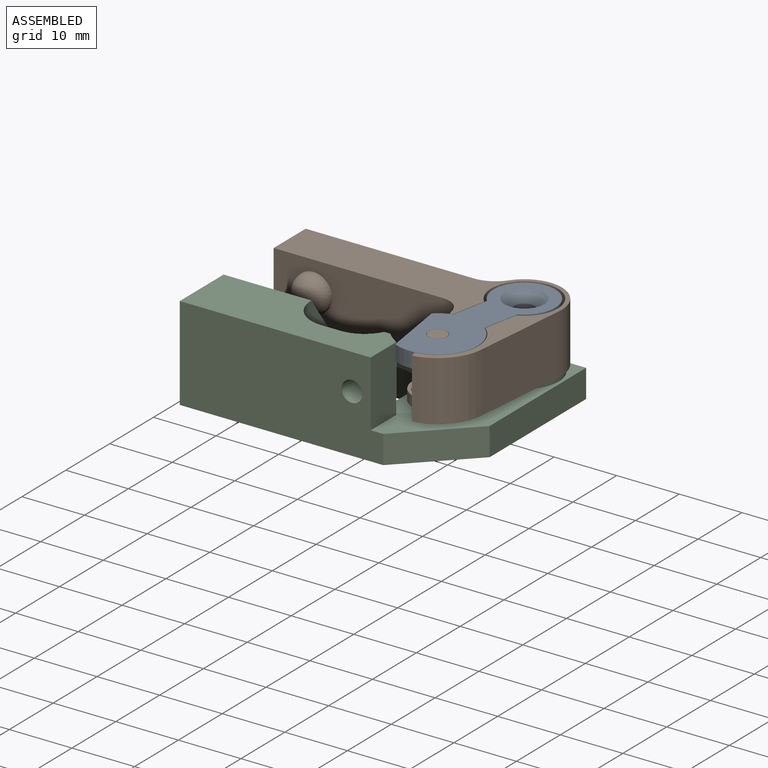
[diagram: assembled view]
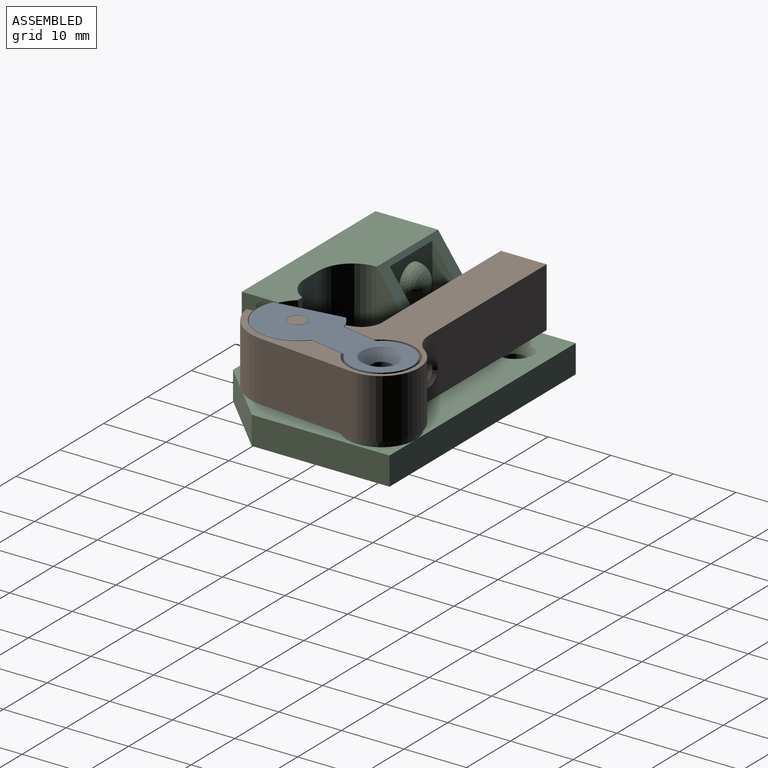
[diagram: assembled view, second angle]
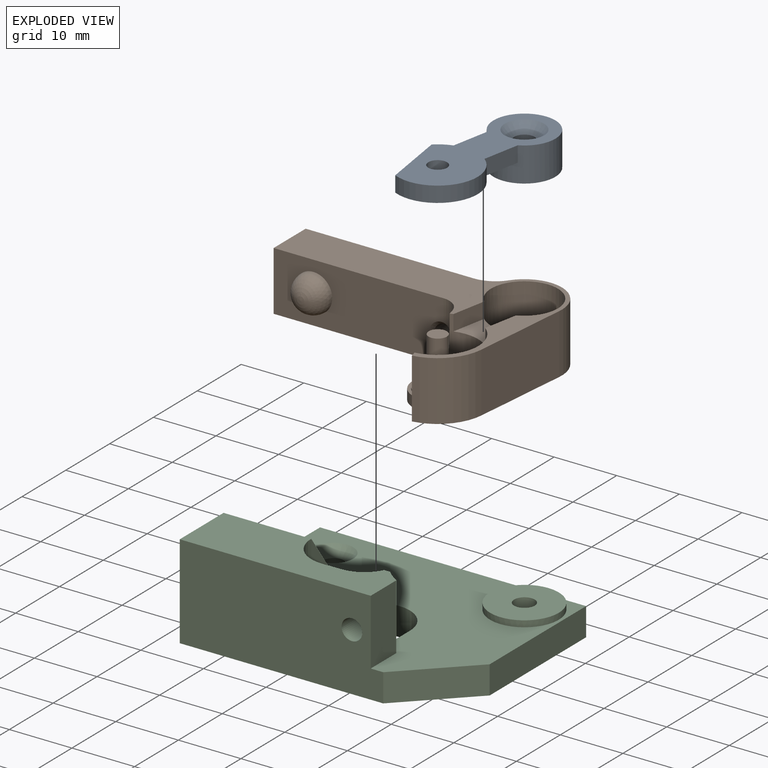
[diagram: exploded view]
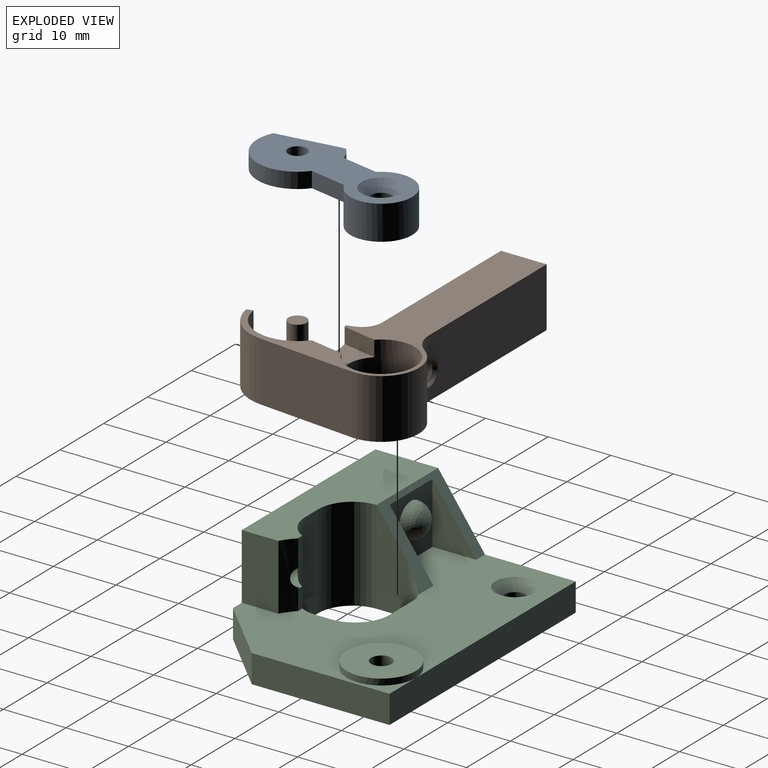
[diagram: exploded view, second angle]
ASSEMBLY  parts=3 mates=3
PART A: 14 faces, bbox 14.4x26.9x5.5 mm
  f0: cylinder r=4.95mm len=9.9mm, axis (0,0,-1), area 155.6mm2, adj f1,f7,f8,f9,f10
  f1: plane 5.96x2.5mm, normal (-0.98,0.19,0), area 15.2mm2, adj f0,f2,f8,f9
  f2: cylinder r=6.4mm len=12.55mm, axis (0,0,-1), area 46.7mm2, adj f1,f3,f8,f9
  f3: plane 9.19x5.38mm, normal (0.86,-0.51,0), area 26.6mm2, adj f2,f4,f8,f9
  f4: cylinder r=6.4mm len=2.5mm, axis (0,0,-1), area 7.3mm2, adj f3,f7,f8,f9
  f5: cylinder r=1.65mm len=4mm, axis (0,0,-1), area 41.5mm2, adj f10,f11
  f6: cylinder r=1.5mm len=3.2mm, axis (0,0,-1), area 30.2mm2, adj f9,f13
  f7: plane 5.96x2.5mm, normal (0.98,-0.19,0), area 15.2mm2, adj f0,f4,f8,f9
  f8: plane 18.51x12.16mm, normal (0,0,1), area 107.8mm2, adj f0,f1,f2,f3,f4,f7,f12
  f9: plane 26.85x14.35mm, normal (0,0,-1), area 174.9mm2, adj f0,f1,f2,f3,f4,f6,f7,f11
  f10: plane 9.9x9.9mm, normal (0,0,1), area 68.4mm2, adj f0,f5
  f11: cone r=3.15mm half-angle=45deg, axis (0,0,-1), area 32mm2, adj f5,f9
  f12: cylinder r=3mm len=6mm, axis (0,0,-1), area 13.2mm2, adj f8,f13
  f13: plane 6x6mm, normal (0,0,1), area 21.2mm2, adj f6,f12
PART B: 31 faces, bbox 41.9x28.9x9.5 mm
  f0: plane 41.86x28.92mm, normal (0,0,1), area 292.6mm2, adj f1,f2,f5,f6,f7,f8,f9,f10
  f1: cylinder r=6.5mm len=12.95mm, axis (0,0,1), area 157.1mm2, adj f0,f11,f12,f23,f28,f29,f30
  f2: cylinder r=5.35mm len=10.7mm, axis (0,0,1), area 169mm2, adj f0,f21,f28,f29,f30
  f3: cylinder r=4mm len=7.61mm, axis (0,0,-1), area 18.1mm2, adj f11,f12,f14,f23
  f4: cylinder r=1.65mm len=4mm, axis (0,0,-1), area 41.5mm2, adj f14,f21
  f5: plane 15.64x9.5mm, normal (1,-0.1,0), area 149.3mm2, adj f0,f6,f13,f14
  f6: cylinder r=6mm len=10.92mm, axis (0,0,-1), area 149.8mm2, adj f0,f5,f14,f16
  f7: plane 26.84x9.5mm, normal (0,1,0), area 248.8mm2, adj f0,f8,f14,f16,f20
  f8: plane 9.5x7.3mm, normal (-1,0,0), area 69.4mm2, adj f0,f7,f9,f14
  f9: plane 27.11x9.5mm, normal (0,-1,0), area 222mm2, adj f0,f8,f10,f14,f18,f22
  f10: cylinder r=3.26mm len=9.5mm, axis (0,0,-1), area 36.3mm2, adj f0,f9,f11,f14,f17
  f11: plane 9.5x3.43mm, normal (-0.97,-0.25,0), area 13.7mm2, adj f0,f1,f3,f10,f14,f23
  f12: plane 9.5x3.43mm, normal (-0.97,-0.25,0), area 13.7mm2, adj f0,f1,f3,f13,f14,f23
  f13: cylinder r=7.5mm len=9.5mm, axis (0,0,-1), area 94.9mm2, adj f0,f5,f12,f14
  f14: plane 41.86x28.92mm, normal (0,0,-1), area 496.2mm2, adj f3,f4,f5,f6,f7,f8,f9,f10
  f15: cylinder r=1.5mm len=7.12mm, axis (0,1,0), area 61.2mm2, adj f17,f18,f19,f20
  f16: cylinder r=5mm len=9.5mm, axis (0,0,-1), area 39.8mm2, adj f0,f6,f7,f14,f19
  f17: bspline ~3.97x1.58mm, area 3mm2, adj f10,f15,f18
  f18: cone r=2mm half-angle=45deg, axis (0,-1,0), area 4.2mm2, adj f9,f15,f17
  f19: bspline ~4.01x1.83mm, area 3.5mm2, adj f15,f16,f20
  f20: cone r=1.5mm half-angle=45deg, axis (0,1,0), area 3.9mm2, adj f7,f15,f19
  f21: plane 10.7x10.7mm, normal (0,0,1), area 81.4mm2, adj f2,f4
  f22: sphere r=3mm, area 56.5mm2, adj f9
  f23: plane 12.95x10.5mm, normal (0,0,1), area 57mm2, adj f1,f3,f11,f12,f24
  f24: cylinder r=3.5mm len=7mm, axis (0,0,1), area 5.5mm2, adj f23,f27
  f25: plane 2.9x2.9mm, normal (0,0,1), area 6.6mm2, adj f26
  f26: cylinder r=1.45mm len=7.6mm, axis (0,0,1), area 69.2mm2, adj f25,f27
  f27: plane 7x7mm, normal (0,0,1), area 31.9mm2, adj f24,f26
  f28: plane 5.49x2.5mm, normal (0.98,-0.19,0), area 14mm2, adj f0,f1,f2,f30
  f29: plane 5.49x2.5mm, normal (-0.98,0.19,0), area 14mm2, adj f0,f1,f2,f30
  f30: plane 6.95x6.63mm, normal (0,0,1), area 26.8mm2, adj f1,f2,f28,f29
PART C: 31 faces, bbox 42.5x32x15 mm
  f0: plane 4.29x0.96mm, normal (0,1,0), area 4mm2, adj f1,f16,f27,f29
  f1: plane 30.5x10mm, normal (0,0,1), area 232.3mm2, adj f0,f5,f9,f16,f17,f21,f25,f27
  f2: plane 42.5x32mm, normal (0,0,-1), area 1125.3mm2, adj f4,f5,f6,f7,f8,f9,f10,f14
  f3: plane 42.5x32mm, normal (0,0,1), area 746.2mm2, adj f4,f5,f8,f9,f10,f11,f12,f13
  f4: plane 42.5x4.5mm, normal (0,1,0), area 191.3mm2, adj f2,f3,f5,f10
  f5: plane 32x15mm, normal (-1,0,0), area 288.4mm2, adj f1,f2,f3,f4,f9,f21
  f6: cylinder r=1.65mm len=3.3mm, axis (0,0,-1), area 31.1mm2, adj f2,f18
  f7: cylinder r=1.65mm len=5.5mm, axis (0,0,-1), area 57mm2, adj f2,f20
  f8: plane 10x10mm, normal (0.71,-0.71,0), area 63.6mm2, adj f2,f3,f9,f10
  f9: plane 32.5x15mm, normal (0,-1,0), area 457.9mm2, adj f1,f2,f3,f5,f8,f17,f29
  f10: plane 22x4.5mm, normal (1,0,0), area 99mm2, adj f2,f3,f4,f8
  f11: plane 9.8x7mm, normal (1,0,0), area 34.3mm2, adj f3,f12,f21
  f12: plane 9.8x9.75mm, normal (0,1,0), area 71.8mm2, adj f3,f11,f13,f21,f22
  f13: plane 9.8x7mm, normal (-1,0,0), area 34.3mm2, adj f3,f12,f21
  f14: plane 15x5mm, normal (1,0,0), area 57.5mm2, adj f2,f21,f28,f30
  f15: plane 3.39x0.96mm, normal (0,1,0), area 3.1mm2, adj f3,f16,f27,f29
  f16: cylinder r=10mm len=10.5mm, axis (0,0,1), area 26.4mm2, adj f0,f1,f3,f15,f17,f29
  f17: plane 10.5x5.84mm, normal (1,0,0), area 61.3mm2, adj f1,f3,f9,f16
  f18: cone r=1.65mm half-angle=45deg, axis (0,0,1), area 32mm2, adj f3,f6
  f19: cylinder r=5.5mm len=11mm, axis (0,0,-1), area 34.6mm2, adj f3,f20
  f20: plane 11x11mm, normal (0,0,1), area 86.5mm2, adj f7,f19
  f21: plane 15.34x10.5mm, normal (0,0.81,0.58), area 64.9mm2, adj f1,f3,f5,f11,f12,f13,f14,f30
  f22: sphere r=2.75mm, area 47.5mm2, adj f12
  f23: plane 5.5x4.5mm, normal (0,-1,0), area 24.7mm2, adj f2,f3,f26,f30
  f24: plane 4.5x2.5mm, normal (-1,0,0), area 11.2mm2, adj f2,f3,f26,f27
  f25: plane 15x3mm, normal (0,1,0), area 45mm2, adj f1,f2,f27,f28
  f26: cylinder r=5.5mm len=5.5mm, axis (0,0,1), area 38.9mm2, adj f2,f3,f23,f24
  f27: cylinder r=5.5mm len=15mm, axis (0,0,-1), area 95.9mm2, adj f0,f1,f2,f3,f15,f24,f25,f29
  f28: cylinder r=5.5mm len=15mm, axis (0,0,-1), area 129.6mm2, adj f1,f2,f14,f25
  f29: cylinder r=1.65mm len=7.5mm, axis (0,-1,0), area 69.6mm2, adj f0,f9,f15,f16,f27
  f30: cylinder r=3mm len=8mm, axis (0,0,1), area 25.9mm2, adj f2,f3,f14,f21,f23
PLACE A rot(axis=(-0.19,-0.98,0),180deg) t=(20.47,19.72,16.8)mm
PLACE B t=(20.47,19.72,7.3)mm
PLACE C t=(-16.03,-6.78,1.8)mm fixed
MATE revolute B.f2 <-> C.f7  axis (0,0,1) through (20.47,19.72,16.8)mm
MATE cylindrical A.f2 <-> B.f1  axis (0,0,1) through (17.47,4.22,16.8)mm
MATE cylindrical A.f0 <-> B.f4  axis (0,0,-1) through (20.47,19.72,11.3)mm
